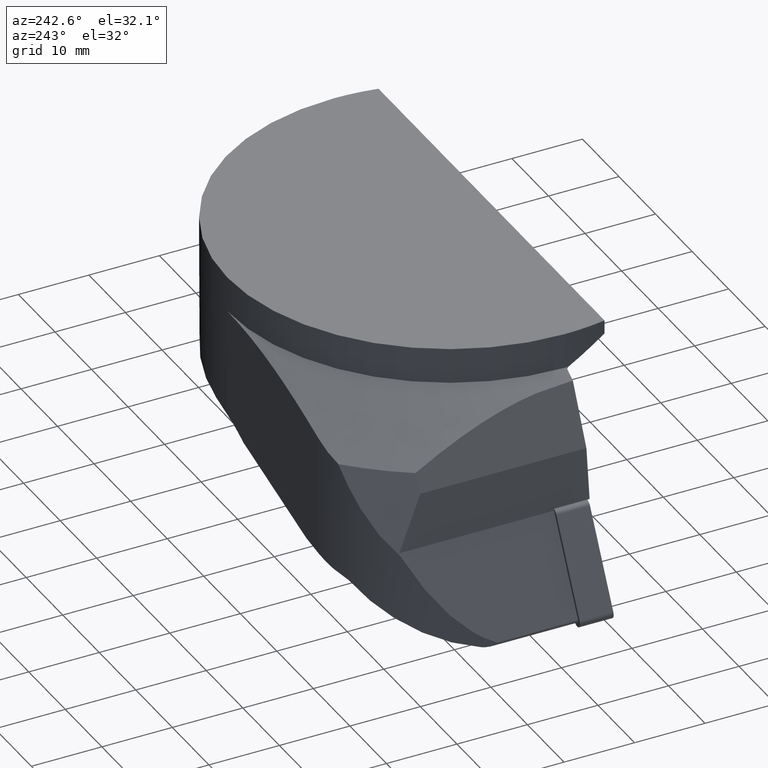
[diagram: clean part render]
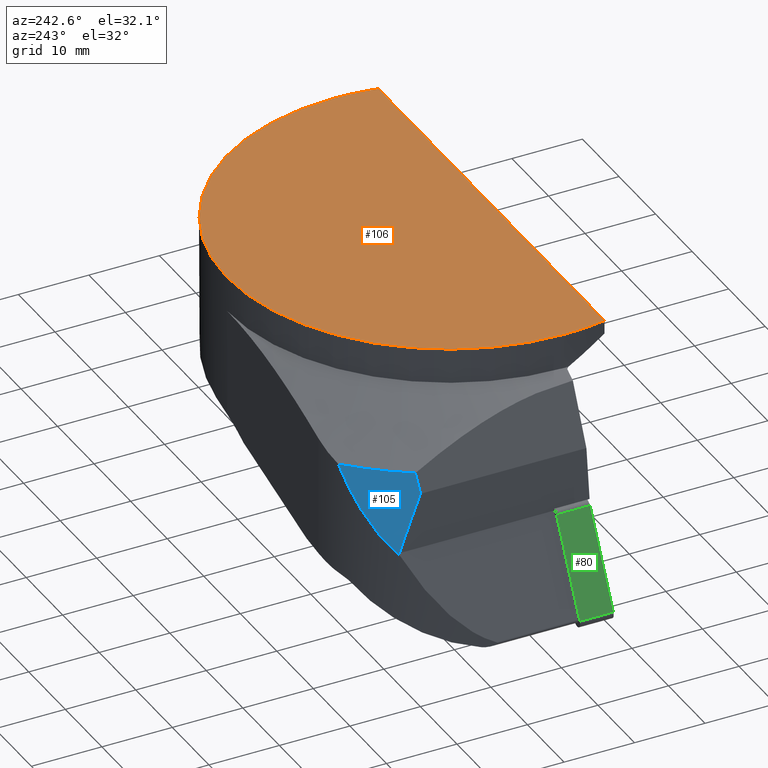
[diagram: same view with three faces highlighted in distinct colors, each labeled with its STEP entity id]
A machine part, auxiliary view with three faces highlighted in distinct colors.
Their STEP definitions:

[orange] entity #106 — the highlighted planar face has unit normal (0, 0, -1).
#106=ADVANCED_FACE('',(#174),#175,.F.);
#174=FACE_OUTER_BOUND('',#318,.T.);
#175=PLANE('',#319);
#318=EDGE_LOOP('',(#589,#590,#591,#592));
#319=AXIS2_PLACEMENT_3D('',#593,#594,#595);
#589=ORIENTED_EDGE('',*,*,#679,.T.);
#590=ORIENTED_EDGE('',*,*,#683,.T.);
#591=ORIENTED_EDGE('',*,*,#698,.T.);
#592=ORIENTED_EDGE('',*,*,#717,.T.);
#593=CARTESIAN_POINT('',(0.0,12.75,0.0));
#594=DIRECTION('',(0.0,0.0,-1.0));
#595=DIRECTION('',(-1.0,0.0,0.0));
#679=EDGE_CURVE('',#819,#817,#820,.T.);
#683=EDGE_CURVE('',#817,#824,#826,.T.);
#698=EDGE_CURVE('',#824,#850,#852,.T.);
#717=EDGE_CURVE('',#850,#819,#881,.T.);
#817=VERTEX_POINT('',#1059);
#819=VERTEX_POINT('',#1062);
#820=CIRCLE('',#1063,31.5);
#824=VERTEX_POINT('',#1068);
#826=CIRCLE('',#1071,31.5);
#850=VERTEX_POINT('',#1104);
#852=CIRCLE('',#1107,31.5);
#881=LINE('',#1164,#1165);
#1059=CARTESIAN_POINT('',(31.5,-3.85751E-015,0.0));
#1062=CARTESIAN_POINT('',(30.9232921921325,-5.99999999999998,0.0));
#1063=AXIS2_PLACEMENT_3D('',#1256,#1257,#1258);
#1068=CARTESIAN_POINT('',(-31.5,3.85751E-015,0.0));
#1071=AXIS2_PLACEMENT_3D('',#1264,#1265,#1266);
#1104=CARTESIAN_POINT('',(-30.9232921921325,-5.99999999999999,0.0));
#1107=AXIS2_PLACEMENT_3D('',#1300,#1301,#1302);
#1164=CARTESIAN_POINT('',(-30.9232921921325,-5.99999999999999,0.0));
#1165=VECTOR('',#1327,61.846584384265);
#1256=CARTESIAN_POINT('',(0.0,-6.123234E-016,0.0));
#1257=DIRECTION('',(0.0,0.0,1.0));
#1258=DIRECTION('',(-1.0,0.0,0.0));
#1264=CARTESIAN_POINT('',(0.0,-6.123234E-016,0.0));
#1265=DIRECTION('',(0.0,0.0,1.0));
#1266=DIRECTION('',(-1.0,0.0,0.0));
#1300=CARTESIAN_POINT('',(0.0,-6.123234E-016,0.0));
#1301=DIRECTION('',(0.0,0.0,1.0));
#1302=DIRECTION('',(-1.0,0.0,0.0));
#1327=DIRECTION('',(1.0,0.0,0.0));

[blue] entity #105 — the highlighted conical surface has half-angle 20 deg.
#105=ADVANCED_FACE('',(#172),#173,.T.);
#172=FACE_OUTER_BOUND('',#316,.T.);
#173=CONICAL_SURFACE('',#317,43.2868102624016,0.349065849601133);
#316=EDGE_LOOP('',(#581,#582,#583,#584,#585));
#317=AXIS2_PLACEMENT_3D('',#586,#587,#588);
#581=ORIENTED_EDGE('',*,*,#721,.F.);
#582=ORIENTED_EDGE('',*,*,#676,.F.);
#583=ORIENTED_EDGE('',*,*,#703,.F.);
#584=ORIENTED_EDGE('',*,*,#667,.F.);
#585=ORIENTED_EDGE('',*,*,#671,.F.);
#586=CARTESIAN_POINT('',(8.88178419700125E-015,-2.44249065417534E-014,-12.9519868772752));
#587=DIRECTION('',(0.0,-0.0,-1.0));
#588=DIRECTION('',(0.63353479897585,0.773714196901304,0.0));
#667=EDGE_CURVE('',#794,#796,#797,.T.);
#671=EDGE_CURVE('',#801,#794,#803,.T.);
#676=EDGE_CURVE('',#811,#813,#814,.T.);
#703=EDGE_CURVE('',#796,#811,#859,.T.);
#721=EDGE_CURVE('',#813,#801,#885,.T.);
#794=VERTEX_POINT('',#1009);
#796=VERTEX_POINT('',#1012);
#797=ELLIPSE('',#1013,84.118910203023,27.7697581634061);
#801=VERTEX_POINT('',#1018);
#803=CIRCLE('',#1021,325.7650164205);
#811=VERTEX_POINT('',#1039);
#813=VERTEX_POINT('',#1046);
#814=CIRCLE('',#1047,42.7583302491977);
#859=B_SPLINE_CURVE_WITH_KNOTS('',3,(#1123,#1124,#1125,#1126,#1127,#1128,#1129,#1130,#1131,#1132),.UNSPECIFIED.,.F.,.F.,(4,2,2,2,4),(32.158405706254,35.5950819891459,39.3072390018865,43.019396014627,45.5276441190841),.UNSPECIFIED.);
#885=ELLIPSE('',#1171,89.6688707758998,23.6889815347807);
#1009=CARTESIAN_POINT('',(-37.8591875908421,26.6949221896124,-21.2973082432566));
#1012=CARTESIAN_POINT('',(-38.0505064270747,26.6553383992862,-21.6648283082119));
#1013=AXIS2_PLACEMENT_3D('',#1237,#1238,#1239);
#1018=CARTESIAN_POINT('',(-36.9591103655993,23.2354144390983,-13.9667675089491));
#1021=AXIS2_PLACEMENT_3D('',#1245,#1246,#1247);
#1039=CARTESIAN_POINT('',(-29.4512462150672,30.9983693454825,-11.5));
#1046=CARTESIAN_POINT('',(-35.8088377852884,23.3666844495824,-11.5));
#1047=AXIS2_PLACEMENT_3D('',#1252,#1253,#1254);
#1123=CARTESIAN_POINT('',(-38.0505064270747,26.6553383992862,-21.6648283082119));
#1124=CARTESIAN_POINT('',(-37.328353925557,27.2771955702767,-21.0200688935936));
#1125=CARTESIAN_POINT('',(-36.5791700094786,27.8320153807678,-20.2848149072463));
#1126=CARTESIAN_POINT('',(-35.0028898544862,28.8461661155331,-18.6155059005941));
#1127=CARTESIAN_POINT('',(-34.1743983612639,29.2943106041819,-17.6701979705059));
#1128=CARTESIAN_POINT('',(-32.5420781104469,30.0451915163858,-15.6902074725941));
#1129=CARTESIAN_POINT('',(-31.7380091014324,30.3481599014561,-14.6552419392213));
#1130=CARTESIAN_POINT('',(-30.4446790255744,30.7523766728924,-12.907753267095));
#1131=CARTESIAN_POINT('',(-29.937837116258,30.8872864200934,-12.1995750916439));
#1132=CARTESIAN_POINT('',(-29.4512462150672,30.9983693454825,-11.5));
#1171=AXIS2_PLACEMENT_3D('',#1333,#1334,#1335);
#1237=CARTESIAN_POINT('',(-27.1574150516725,4.8816E-015,-0.739394468600999));
#1238=DIRECTION('',(-0.887010833178222,-1.084183E-016,0.461748613235034));
#1239=DIRECTION('',(0.461748613235034,-4.699322E-016,0.887010833178222));
#1245=CARTESIAN_POINT('',(-54.2482488905078,-270.016750357575,-154.775501096678));
#1246=DIRECTION('',(-0.992546151641315,1.24353696019843E-013,0.121869343405206));
#1247=DIRECTION('',(0.05307242230882,0.900195386290777,0.432240193053668));
#1252=CARTESIAN_POINT('',(0.0,4.494702E-015,-11.5));
#1253=DIRECTION('',(0.0,0.0,1.0));
#1254=DIRECTION('',(-1.0,0.0,0.0));
#1333=CARTESIAN_POINT('',(-29.5789858957649,1.909245E-014,1.8599604908326));
#1334=DIRECTION('',(-0.90630778703665,3.67150600000001E-017,0.422618261740699));
#1335=DIRECTION('',(0.422618261740699,-4.199907E-016,0.90630778703665));

[green] entity #80 — the highlighted planar face has unit normal (-0.887, 0, 0.4617).
#80=ADVANCED_FACE('',(#122),#123,.T.);
#122=FACE_OUTER_BOUND('',#218,.T.);
#123=PLANE('',#219);
#218=EDGE_LOOP('',(#360,#361,#362,#363));
#219=AXIS2_PLACEMENT_3D('',#364,#365,#366);
#360=ORIENTED_EDGE('',*,*,#642,.T.);
#361=ORIENTED_EDGE('',*,*,#643,.F.);
#362=ORIENTED_EDGE('',*,*,#644,.T.);
#363=ORIENTED_EDGE('',*,*,#640,.T.);
#364=CARTESIAN_POINT('',(-44.9040805055676,4.76000000000001,-33.8300875970279));
#365=DIRECTION('',(-0.887032051289717,0.0,0.461707851335405));
#366=DIRECTION('',(0.461707851335405,0.0,0.887032051289717));
#640=EDGE_CURVE('',#752,#750,#753,.T.);
#642=EDGE_CURVE('',#750,#755,#756,.T.);
#643=EDGE_CURVE('',#757,#755,#758,.T.);
#644=EDGE_CURVE('',#757,#752,#759,.T.);
#750=VERTEX_POINT('',#926);
#752=VERTEX_POINT('',#928);
#753=LINE('',#929,#930);
#755=VERTEX_POINT('',#932);
#756=LINE('',#933,#934);
#757=VERTEX_POINT('',#935);
#758=LINE('',#936,#937);
#759=LINE('',#938,#939);
#926=CARTESIAN_POINT('',(-44.9040805055676,8.32667268468867E-015,-33.8300875970279));
#928=CARTESIAN_POINT('',(-44.9040805055676,4.76000000000001,-33.8300875970279));
#929=CARTESIAN_POINT('',(-44.9040805055676,4.76000000000001,-33.8300875970279));
#930=VECTOR('',#1197,10.0);
#932=CARTESIAN_POINT('',(-38.5198471440599,8.32667268468867E-015,-21.564713295527));
#933=CARTESIAN_POINT('',(-38.5198471440599,9.43689570931383E-015,-21.564713295527));
#934=VECTOR('',#1201,10.0);
#935=CARTESIAN_POINT('',(-38.5198471440599,4.76000000000001,-21.564713295527));
#936=CARTESIAN_POINT('',(-38.5198471440599,4.76000000000001,-21.564713295527));
#937=VECTOR('',#1202,10.0);
#938=CARTESIAN_POINT('',(-38.5198471440599,4.76000000000001,-21.564713295527));
#939=VECTOR('',#1203,10.0);
#1197=DIRECTION('',(0.0,-1.0,0.0));
#1201=DIRECTION('',(0.461707851335405,-2.21886344003094E-032,0.887032051289717));
#1202=DIRECTION('',(0.0,-1.0,0.0));
#1203=DIRECTION('',(-0.461707851335405,2.21886344003094E-032,-0.887032051289717));